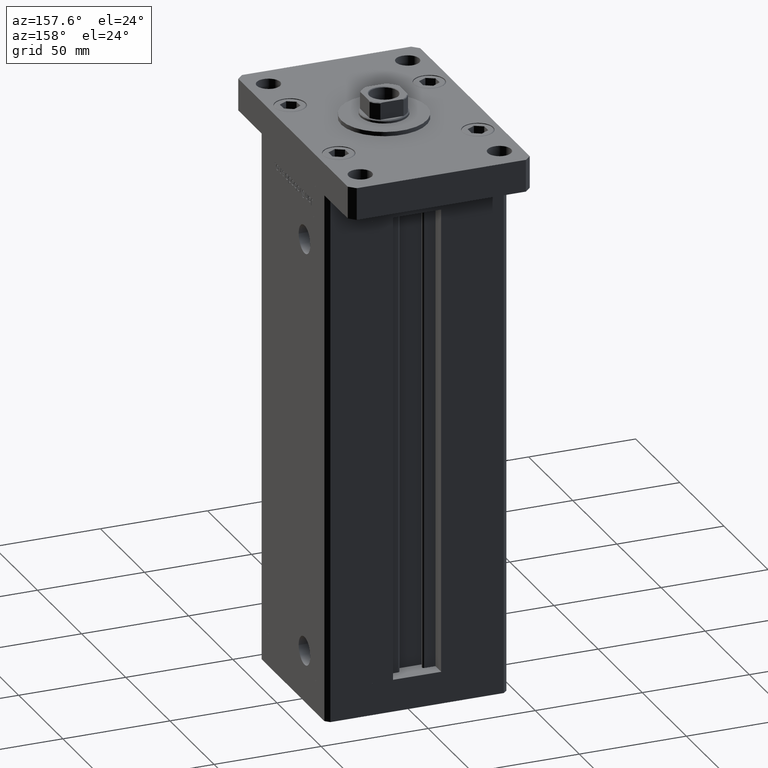
[diagram: clean part render]
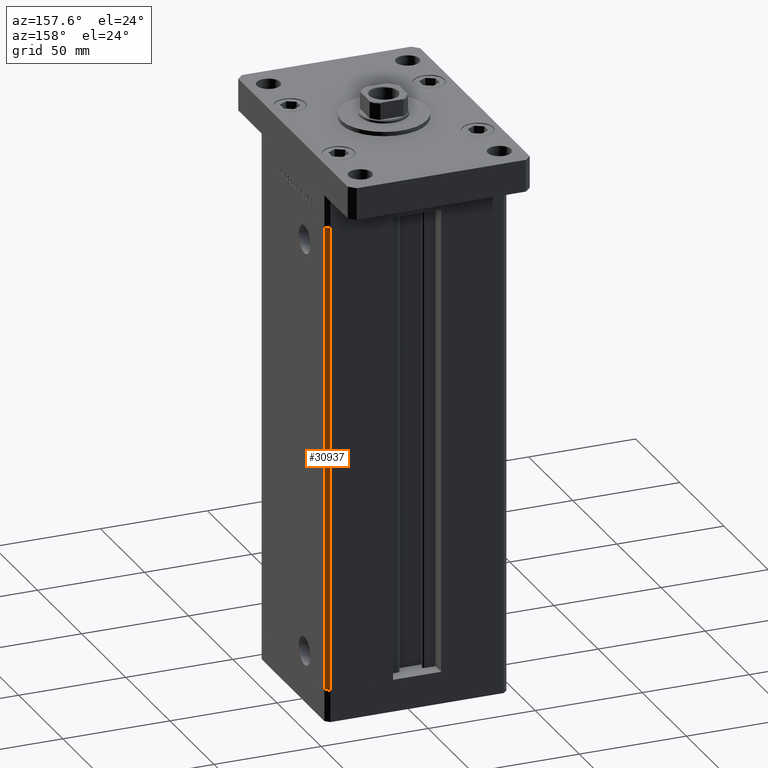
[diagram: same view with one face highlighted and labeled with its STEP entity id]
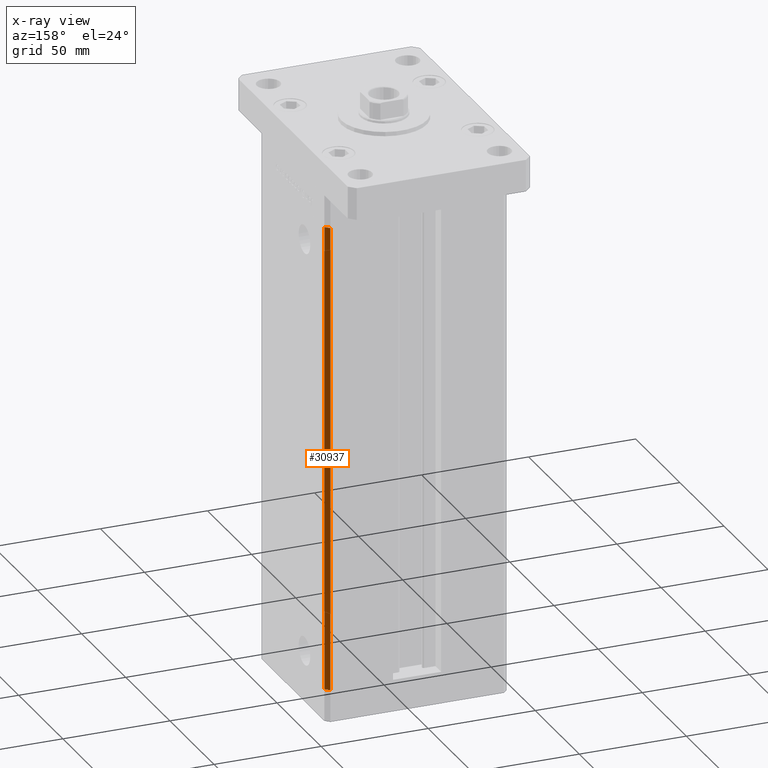
[diagram: x-ray of the same camera — body ghosted, the highlighted face saturated]
A machine part, auxiliary view. The second image highlights one B-rep face of the part: STEP entity #30937.
The next image is the same camera in x-ray: the body ghosted, the highlighted face saturated — about 0% of this face is hidden behind the body in this view.
In plain terms, the highlighted planar face has unit normal (0.7071, 0.7071, 0).
Its self-contained STEP definition (entity closure, byte-faithful):
#2819 = VECTOR ( 'NONE', #49084, 1000.000000000000114 ) ;
#6743 = CARTESIAN_POINT ( 'NONE',  ( 40.50000000000000000, 37.50000000000000711, 218.5000000000000000 ) ) ;
#7424 = VECTOR ( 'NONE', #21010, 1000.000000000000114 ) ;
#7703 = PLANE ( 'NONE',  #33985 ) ;
#8709 = LINE ( 'NONE', #32825, #52474 ) ;
#9472 = EDGE_CURVE ( 'NONE', #13884, #18114, #48945, .T. ) ;
#13884 = VERTEX_POINT ( 'NONE', #37812 ) ;
#16122 = CARTESIAN_POINT ( 'NONE',  ( 42.50000000000000711, 35.50000000000001421, 218.5000000000000000 ) ) ;
#18114 = VERTEX_POINT ( 'NONE', #31469 ) ;
#21010 = DIRECTION ( 'NONE',  ( 0.7071067811865500152, -0.7071067811865451302, 0.000000000000000000 ) ) ;
#23331 = VERTEX_POINT ( 'NONE', #52565 ) ;
#24234 = DIRECTION ( 'NONE',  ( 0.7071067811865450192, 0.7071067811865500152, -0.000000000000000000 ) ) ;
#24553 = VECTOR ( 'NONE', #49457, 1000.000000000000000 ) ;
#25242 = DIRECTION ( 'NONE',  ( -0.000000000000000000, -0.000000000000000000, -1.000000000000000000 ) ) ;
#26424 = EDGE_CURVE ( 'NONE', #43453, #23331, #40431, .T. ) ;
#26666 = ORIENTED_EDGE ( 'NONE', *, *, #9472, .F. ) ;
#27945 = CARTESIAN_POINT ( 'NONE',  ( 40.50000000000000000, 37.50000000000000711, 218.5000000000000000 ) ) ;
#28561 = DIRECTION ( 'NONE',  ( -0.7071067811865500152, 0.7071067811865450192, 0.000000000000000000 ) ) ;
#28821 = CARTESIAN_POINT ( 'NONE',  ( 40.50000000000000000, 37.50000000000000711, 218.5000000000000000 ) ) ;
#29414 = CARTESIAN_POINT ( 'NONE',  ( 40.50000000000000000, 37.50000000000000711, 0.000000000000000000 ) ) ;
#30937 = ADVANCED_FACE ( 'NONE', ( #36964 ), #7703, .T. ) ;
#31469 = CARTESIAN_POINT ( 'NONE',  ( 42.50000000000000711, 35.50000000000001421, 0.000000000000000000 ) ) ;
#32528 = EDGE_LOOP ( 'NONE', ( #26666, #36976, #48442, #33673 ) ) ;
#32825 = CARTESIAN_POINT ( 'NONE',  ( 40.50000000000000000, 37.50000000000000711, 218.5000000000000000 ) ) ;
#33171 = LINE ( 'NONE', #16122, #24553 ) ;
#33673 = ORIENTED_EDGE ( 'NONE', *, *, #33686, .T. ) ;
#33686 = EDGE_CURVE ( 'NONE', #23331, #18114, #33171, .T. ) ;
#33985 = AXIS2_PLACEMENT_3D ( 'NONE', #28821, #24234, #28561 ) ;
#36964 = FACE_OUTER_BOUND ( 'NONE', #32528, .T. ) ;
#36976 = ORIENTED_EDGE ( 'NONE', *, *, #50590, .F. ) ;
#37812 = CARTESIAN_POINT ( 'NONE',  ( 40.50000000000000000, 37.50000000000000711, 0.000000000000000000 ) ) ;
#40431 = LINE ( 'NONE', #27945, #2819 ) ;
#43453 = VERTEX_POINT ( 'NONE', #6743 ) ;
#48442 = ORIENTED_EDGE ( 'NONE', *, *, #26424, .T. ) ;
#48945 = LINE ( 'NONE', #29414, #7424 ) ;
#49084 = DIRECTION ( 'NONE',  ( 0.7071067811865500152, -0.7071067811865451302, 0.000000000000000000 ) ) ;
#49457 = DIRECTION ( 'NONE',  ( -0.000000000000000000, -0.000000000000000000, -1.000000000000000000 ) ) ;
#50590 = EDGE_CURVE ( 'NONE', #43453, #13884, #8709, .T. ) ;
#52474 = VECTOR ( 'NONE', #25242, 1000.000000000000000 ) ;
#52565 = CARTESIAN_POINT ( 'NONE',  ( 42.50000000000000711, 35.50000000000001421, 218.5000000000000000 ) ) ;